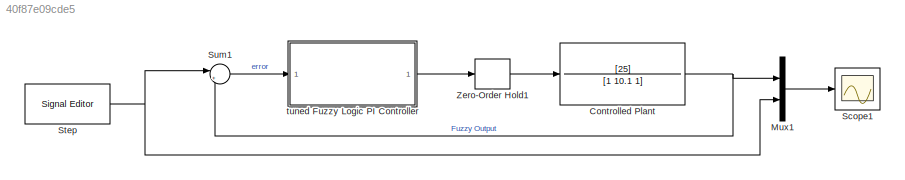
MODEL slx_40f87e09cde5
KIND model
CONFIG AbsTol = auto
CONFIG EnableMultiTasking = off
CONFIG FixedStep = auto
CONFIG MaxStep = auto
CONFIG MinStep = auto
CONFIG RelTol = 1e-3
CONFIG SampleTimeConstraint = Unconstrained
CONFIG SolverName = VariableStepAuto
CONFIG StartTime = 0.0
CONFIG StopTime = 15
BLOCK [TransferFcn] Controlled Plant
  Denominator = [1 10.1 1]
  Numerator = [25]
BLOCK [Mux] Mux1
  DisplayOption = bar
  Inputs = 2
BLOCK [Scope] Scope1
  Floating = off
  NumInputPorts = 1
  ScopeSpecificationString = Simulink.scopes.TimeScopeBlockCfg('CurrentConfiguration', extmgr.ConfigurationSet(extmgr.Configuration('Core','General UI',true,'FigureColor',[1 1 1]),extmgr.Configuration('Core','Source UI',true),extmgr.Configuration('Sources','WiredSimulink',true,'DataLogging',true,'DataLoggingVariableName','ScopeData1'),extmgr.Configuration('Visuals','Time Domain',true,'SerializedDisplays',{struct('MinYLimReal'...<+1768ch>
BLOCK [Reference] Step  REF=SignalEditorBlockLib/Signal Editor
  LibrarySourceBlock = simulink/Sources/Signal Editor
  SourceBlock = SignalEditorBlockLib/Signal Editor
  SourceType = SignalEditor
  UserDataPersistent = on
BLOCK [Sum] Sum1
  Inputs = |+-
BLOCK [ZeroOrderHold] Zero-Order Hold1
  SampleTime = -1
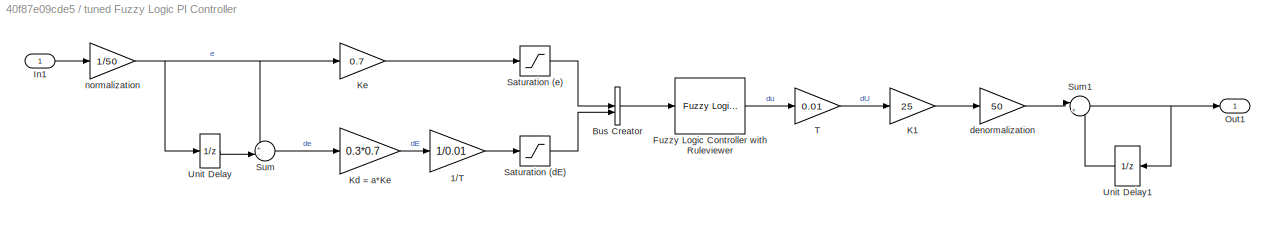
BLOCK [SubSystem] tuned Fuzzy Logic PI Controller
BLOCK [Gain] tuned Fuzzy Logic PI Controller/1//T
  Gain = 1/0.01
BLOCK [BusCreator] tuned Fuzzy Logic PI Controller/Bus Creator
  DisplayOption = bar
  InheritFromInputs = on
  Inputs = 2
BLOCK [Reference] tuned Fuzzy Logic PI Controller/Fuzzy Logic Controller with Ruleviewer  REF=fuzblock/Fuzzy Logic   (lib defined in mdl_858b3b3e7478)
Controller 
with Ruleviewer
  SourceBlock = fuzblock/Fuzzy Logic \nController \nwith Ruleviewer
  SourceType = Fuzzy Inference System
BLOCK [Inport] tuned Fuzzy Logic PI Controller/In1
BLOCK [Gain] tuned Fuzzy Logic PI Controller/K1
  Gain = 25
BLOCK [Gain] tuned Fuzzy Logic PI Controller/Kd = a*Ke
  Gain = 0.3*0.7
BLOCK [Gain] tuned Fuzzy Logic PI Controller/Ke
  Gain = 0.7
BLOCK [Outport] tuned Fuzzy Logic PI Controller/Out1
BLOCK [Saturate] tuned Fuzzy Logic PI Controller/Saturation (dE)
  LowerLimit = -1
  UpperLimit = 1
BLOCK [Saturate] tuned Fuzzy Logic PI Controller/Saturation (e)
  LowerLimit = -1
  UpperLimit = 1
BLOCK [Sum] tuned Fuzzy Logic PI Controller/Sum
  Inputs = +-|
BLOCK [Sum] tuned Fuzzy Logic PI Controller/Sum1
  Inputs = |++
BLOCK [Gain] tuned Fuzzy Logic PI Controller/T
  Gain = 0.01
BLOCK [UnitDelay] tuned Fuzzy Logic PI Controller/Unit Delay
  HasFrameUpgradeWarning = on
  SampleTime = -1
BLOCK [UnitDelay] tuned Fuzzy Logic PI Controller/Unit Delay1
  HasFrameUpgradeWarning = on
  SampleTime = -1
BLOCK [Gain] tuned Fuzzy Logic PI Controller/denormalization
  Gain = 50
BLOCK [Gain] tuned Fuzzy Logic PI Controller/normalization
  Gain = 1/50
NET Controlled Plant:1 -> Mux1:1, Sum1:2
LINE Mux1:1 -> Scope1:1
NET Step:1 -> Mux1:2, Sum1:1
LINE Sum1:1 -> tuned Fuzzy Logic PI Controller:1
LINE Zero-Order Hold1:1 -> Controlled Plant:1
LINE tuned Fuzzy Logic PI Controller/1//T:1 -> tuned Fuzzy Logic PI Controller/Saturation (dE):1
LINE tuned Fuzzy Logic PI Controller/Bus Creator:1 -> tuned Fuzzy Logic PI Controller/Fuzzy Logic Controller with Ruleviewer:1
LINE tuned Fuzzy Logic PI Controller/Fuzzy Logic Controller with Ruleviewer:1 -> tuned Fuzzy Logic PI Controller/T:1
LINE tuned Fuzzy Logic PI Controller/In1:1 -> tuned Fuzzy Logic PI Controller/normalization:1
LINE tuned Fuzzy Logic PI Controller/K1:1 -> tuned Fuzzy Logic PI Controller/denormalization:1
LINE tuned Fuzzy Logic PI Controller/Kd = a*Ke:1 -> tuned Fuzzy Logic PI Controller/1//T:1
LINE tuned Fuzzy Logic PI Controller/Ke:1 -> tuned Fuzzy Logic PI Controller/Saturation (e):1
LINE tuned Fuzzy Logic PI Controller/Saturation (dE):1 -> tuned Fuzzy Logic PI Controller/Bus Creator:2
LINE tuned Fuzzy Logic PI Controller/Saturation (e):1 -> tuned Fuzzy Logic PI Controller/Bus Creator:1
NET tuned Fuzzy Logic PI Controller/Sum1:1 -> tuned Fuzzy Logic PI Controller/Out1:1, tuned Fuzzy Logic PI Controller/Unit Delay1:1
LINE tuned Fuzzy Logic PI Controller/Sum:1 -> tuned Fuzzy Logic PI Controller/Kd = a*Ke:1
LINE tuned Fuzzy Logic PI Controller/T:1 -> tuned Fuzzy Logic PI Controller/K1:1
LINE tuned Fuzzy Logic PI Controller/Unit Delay1:1 -> tuned Fuzzy Logic PI Controller/Sum1:2
LINE tuned Fuzzy Logic PI Controller/Unit Delay:1 -> tuned Fuzzy Logic PI Controller/Sum:2
LINE tuned Fuzzy Logic PI Controller/denormalization:1 -> tuned Fuzzy Logic PI Controller/Sum1:1
NET tuned Fuzzy Logic PI Controller/normalization:1 -> tuned Fuzzy Logic PI Controller/Ke:1, tuned Fuzzy Logic PI Controller/Sum:1, tuned Fuzzy Logic PI Controller/Unit Delay:1
LINE tuned Fuzzy Logic PI Controller:1 -> Zero-Order Hold1:1
note: NET lines group one-source signal fan-out (src -> all destinations, sorted); 1:1 wires keep LINE
